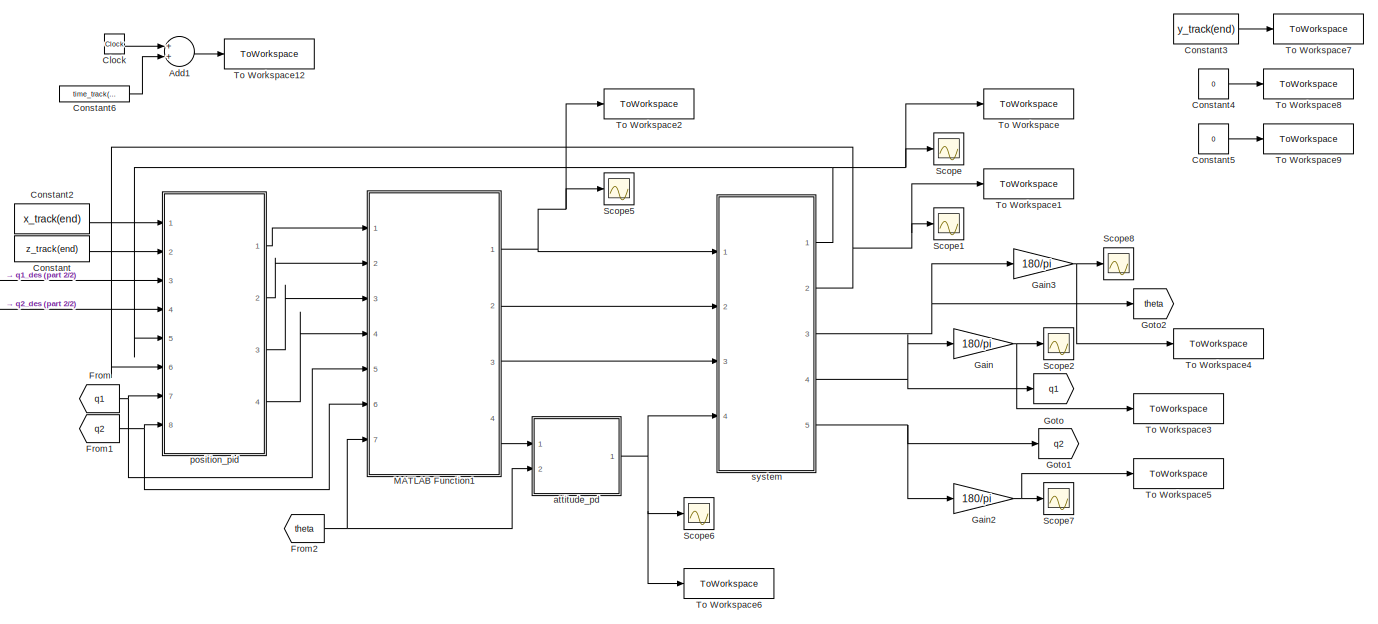
[diagram: root canvas - part 1/2, most of the canvas]
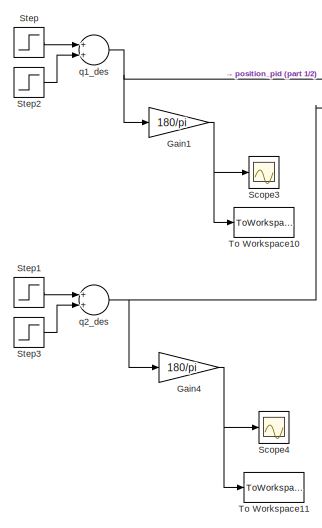
[diagram: root canvas - part 2/2, middle left region]
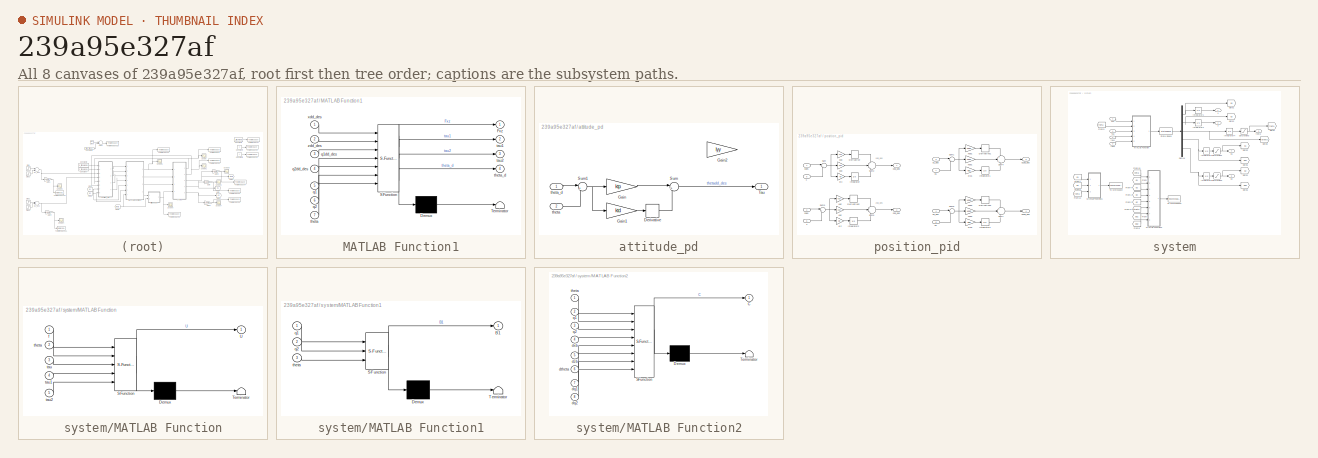
[diagram: thumbnail index - all 8 canvases of the model, root first then tree order]
MODEL slx_239a95e327af
KIND model
CONFIG AbsTol = auto
CONFIG EnableMultiTasking = off
CONFIG FixedStep = 0.0001
CONFIG MaxStep = auto
CONFIG MinStep = auto
CONFIG RelTol = 1e-3
CONFIG SampleTimeConstraint = Unconstrained
CONFIG Solver = ode4
CONFIG SolverName = ode4
CONFIG StartTime = 0.0
CONFIG StopTime = 50
BLOCK [Sum] Add1
  InputSameDT = off
  OutDataTypeStr = Inherit: Inherit via internal rule
  Ports = [2, 1]
  SaturateOnIntegerOverflow = off
BLOCK [Clock] Clock
BLOCK [Constant] Constant
  Value = z_track(end)
BLOCK [Constant] Constant2
  Value = x_track(end)
BLOCK [Constant] Constant3
  Value = y_track(end)
BLOCK [Constant] Constant4
  Value = 0
BLOCK [Constant] Constant5
  Value = 0
BLOCK [Constant] Constant6
  Value = time_track(end)
BLOCK [From] From
  GotoTag = q1
BLOCK [From] From1
  GotoTag = q2
BLOCK [From] From2
  GotoTag = theta
BLOCK [Gain] Gain
  Gain = 180/pi
  OutDataTypeStr = Inherit: Inherit via internal rule
  ParamDataTypeStr = Inherit: Inherit via internal rule
  SaturateOnIntegerOverflow = off
BLOCK [Gain] Gain1
  Gain = 180/pi
  OutDataTypeStr = Inherit: Inherit via internal rule
  ParamDataTypeStr = Inherit: Inherit via internal rule
  SaturateOnIntegerOverflow = off
BLOCK [Gain] Gain2
  Gain = 180/pi
  OutDataTypeStr = Inherit: Inherit via internal rule
  ParamDataTypeStr = Inherit: Inherit via internal rule
  SaturateOnIntegerOverflow = off
BLOCK [Gain] Gain3
  Gain = 180/pi
  OutDataTypeStr = Inherit: Inherit via internal rule
  ParamDataTypeStr = Inherit: Inherit via internal rule
  SaturateOnIntegerOverflow = off
BLOCK [Gain] Gain4
  Gain = 180/pi
  OutDataTypeStr = Inherit: Inherit via internal rule
  ParamDataTypeStr = Inherit: Inherit via internal rule
  SaturateOnIntegerOverflow = off
BLOCK [Goto] Goto
  GotoTag = q1
BLOCK [Goto] Goto1
  GotoTag = q2
BLOCK [Goto] Goto2
  GotoTag = theta
BLOCK [SubSystem] MATLAB Function1
  ErrorFcn = Stateflow.Translate.translate
  PermitHierarchicalResolution = ExplicitOnly
  Ports = [7, 4]
  RequestExecContextInheritance = off
  SFBlockType = MATLAB Function
  TreatAsAtomicUnit = on
BLOCK [Demux] MATLAB Function1/ Demux 
  Outputs = 1
  Ports = [1, 1]
BLOCK [S-Function] MATLAB Function1/ SFunction 
  EnableBusSupport = on
  FunctionName = sf_sfun
  Parameters = L1,L2,g,hL1,hL2,mL1,mL2,ms
  PortCounts = [7 5]
  Ports = [7, 5]
  SFcnIsStateOwnerBlock = off
  SFunctionDeploymentMode = off
  Tag = Stateflow S-Function xz2dof_1step 5
BLOCK [Terminator] MATLAB Function1/ Terminator 
BLOCK [Outport] MATLAB Function1/Fxz
  IconDisplay = Port number
BLOCK [Inport] MATLAB Function1/q1
  IconDisplay = Port number
  Port = 5
BLOCK [Inport] MATLAB Function1/q1dd_des
  IconDisplay = Port number
  Port = 3
BLOCK [Inport] MATLAB Function1/q2
  IconDisplay = Port number
  Port = 6
BLOCK [Inport] MATLAB Function1/q2dd_des
  IconDisplay = Port number
  Port = 4
BLOCK [Outport] MATLAB Function1/tau1
  IconDisplay = Port number
  Port = 2
BLOCK [Outport] MATLAB Function1/tau2
  IconDisplay = Port number
  Port = 3
BLOCK [Inport] MATLAB Function1/theta
  IconDisplay = Port number
  Port = 7
BLOCK [Outport] MATLAB Function1/theta_d
  IconDisplay = Port number
  Port = 4
BLOCK [Inport] MATLAB Function1/xdd_des
  IconDisplay = Port number
BLOCK [Inport] MATLAB Function1/zdd_des
  IconDisplay = Port number
  Port = 2
BLOCK [Scope] Scope
  Floating = off
  NumInputPorts = 1
  Ports = [1]
  ScopeSpecificationString = Simulink.scopes.TimeScopeBlockCfg('CurrentConfiguration', extmgr.ConfigurationSet(extmgr.Configuration('Core','General UI',true,'FigureColor',[1 1 1]),extmgr.Configuration('Core','Source UI',true),extmgr.Configuration('Sources','WiredSimulink',true),extmgr.Configuration('Visuals','Time Domain',true,'SerializedDisplays',{struct('MinYLimReal','3.98654','MaxYLimReal','4.04611','YLabelReal','','MinYLi...<+1565ch>
BLOCK [Scope] Scope1
  Floating = off
  NumInputPorts = 1
  Ports = [1]
  ScopeSpecificationString = Simulink.scopes.TimeScopeBlockCfg('CurrentConfiguration', extmgr.ConfigurationSet(extmgr.Configuration('Core','General UI',true,'FigureColor',[1 1 1]),extmgr.Configuration('Core','Source UI',true),extmgr.Configuration('Sources','WiredSimulink',true,'DataLoggingVariableName','ScopeData1'),extmgr.Configuration('Visuals','Time Domain',true,'SerializedDisplays',{struct('MinYLimReal','3.99837','MaxYLim...<+1558ch>
BLOCK [Scope] Scope2
  Floating = off
  NumInputPorts = 1
  Ports = [1]
  ScopeSpecificationString = Simulink.scopes.TimeScopeBlockCfg('CurrentConfiguration', extmgr.ConfigurationSet(extmgr.Configuration('Core','General UI',true,'FigureColor',[1 1 1]),extmgr.Configuration('Core','Source UI',true),extmgr.Configuration('Sources','WiredSimulink',true,'DataLoggingVariableName','ScopeData2'),extmgr.Configuration('Visuals','Time Domain',true,'SerializedDisplays',{struct('MinYLimReal','28.75412','MaxYLi...<+1550ch>
BLOCK [Scope] Scope3
  Floating = off
  NumInputPorts = 1
  Ports = [1]
  ScopeSpecificationString = Simulink.scopes.TimeScopeBlockCfg('CurrentConfiguration', extmgr.ConfigurationSet(extmgr.Configuration('Core','General UI',true,'FigureColor',[1 1 1]),extmgr.Configuration('Core','Source UI',true),extmgr.Configuration('Sources','WiredSimulink',true,'DataLoggingVariableName','ScopeData1'),extmgr.Configuration('Visuals','Time Domain',true,'SerializedDisplays',{struct('MinYLimReal','39.375','MaxYLimR...<+1566ch>
BLOCK [Scope] Scope4
  Floating = off
  NumInputPorts = 1
  Ports = [1]
  ScopeSpecificationString = Simulink.scopes.TimeScopeBlockCfg('CurrentConfiguration', extmgr.ConfigurationSet(extmgr.Configuration('Core','General UI',true,'FigureColor',[1 1 1]),extmgr.Configuration('Core','Source UI',true),extmgr.Configuration('Sources','WiredSimulink',true,'DataLoggingVariableName','ScopeData1'),extmgr.Configuration('Visuals','Time Domain',true,'SerializedDisplays',{struct('MinYLimReal','-5.625','MaxYLimR...<+1569ch>
BLOCK [Scope] Scope5
  Floating = off
  NumInputPorts = 1
  Ports = [1]
  ScopeSpecificationString = Simulink.scopes.TimeScopeBlockCfg('CurrentConfiguration', extmgr.ConfigurationSet(extmgr.Configuration('Core','General UI',true,'FigureColor',[1 1 1]),extmgr.Configuration('Core','Source UI',true),extmgr.Configuration('Sources','WiredSimulink',true,'DataLoggingVariableName','ScopeData3'),extmgr.Configuration('Visuals','Time Domain',true,'SerializedDisplays',{struct('MinYLimReal','13.1625','MaxYLim...<+1564ch>
BLOCK [Scope] Scope6
  Floating = off
  NumInputPorts = 1
  Ports = [1]
  ScopeSpecificationString = Simulink.scopes.TimeScopeBlockCfg('CurrentConfiguration', extmgr.ConfigurationSet(extmgr.Configuration('Core','General UI',true,'FigureColor',[1 1 1]),extmgr.Configuration('Core','Source UI',true),extmgr.Configuration('Sources','WiredSimulink',true,'DataLoggingVariableName','ScopeData4'),extmgr.Configuration('Visuals','Time Domain',true,'SerializedDisplays',{struct('MinYLimReal','-163579.35739','M...<+1610ch>
BLOCK [Scope] Scope7
  Floating = off
  NumInputPorts = 1
  Ports = [1]
  ScopeSpecificationString = Simulink.scopes.TimeScopeBlockCfg('CurrentConfiguration', extmgr.ConfigurationSet(extmgr.Configuration('Core','General UI',true,'FigureColor',[1 1 1]),extmgr.Configuration('Core','Source UI',true),extmgr.Configuration('Sources','WiredSimulink',true,'DataLoggingVariableName','ScopeData1'),extmgr.Configuration('Visuals','Time Domain',true,'SerializedDisplays',{struct('MinYLimReal','-8.70216','MaxYLi...<+1544ch>
BLOCK [Scope] Scope8
  Floating = off
  NumInputPorts = 1
  Ports = [1]
  ScopeSpecificationString = Simulink.scopes.TimeScopeBlockCfg('CurrentConfiguration', extmgr.ConfigurationSet(extmgr.Configuration('Core','General UI',true,'FigureColor',[1 1 1]),extmgr.Configuration('Core','Source UI',true),extmgr.Configuration('Sources','WiredSimulink',true,'DataLoggingVariableName','ScopeData1'),extmgr.Configuration('Visuals','Time Domain',true,'SerializedDisplays',{struct('MinYLimReal','-27.11822','MaxYL...<+1551ch>
BLOCK [Step] Step
  After = pi/4
  Before = pi/2
  SampleTime = 0
  Time = 2
BLOCK [Step] Step1
  After = pi/4
  SampleTime = 0
  Time = 2
BLOCK [Step] Step2
  After = pi/4
  SampleTime = 0
  Time = 20
BLOCK [Step] Step3
  After = -pi/4
  SampleTime = 0
  Time = 20
BLOCK [ToWorkspace] To Workspace
  FixptAsFi = on
  MaxDataPoints = inf
  Ports = [1]
  SampleTime = -1
  VariableName = x_grasp
BLOCK [ToWorkspace] To Workspace1
  FixptAsFi = on
  MaxDataPoints = inf
  Ports = [1]
  SampleTime = -1
  VariableName = z_grasp
BLOCK [ToWorkspace] To Workspace10
  FixptAsFi = on
  MaxDataPoints = inf
  Ports = [1]
  SampleTime = -1
  VariableName = q1_input
BLOCK [ToWorkspace] To Workspace11
  FixptAsFi = on
  MaxDataPoints = inf
  Ports = [1]
  SampleTime = -1
  VariableName = q2_input
BLOCK [ToWorkspace] To Workspace12
  MaxDataPoints = inf
  Ports = [1]
  SampleTime = -1
  VariableName = time_grasp
BLOCK [ToWorkspace] To Workspace2
  FixptAsFi = on
  MaxDataPoints = inf
  Ports = [1]
  SampleTime = -1
  VariableName = Fxz
BLOCK [ToWorkspace] To Workspace3
  FixptAsFi = on
  MaxDataPoints = inf
  Ports = [1]
  SampleTime = -1
  VariableName = q1_grasp
BLOCK [ToWorkspace] To Workspace4
  FixptAsFi = on
  MaxDataPoints = inf
  Ports = [1]
  SampleTime = -1
  VariableName = theta_grasp
BLOCK [ToWorkspace] To Workspace5
  FixptAsFi = on
  MaxDataPoints = inf
  Ports = [1]
  SampleTime = -1
  VariableName = q2_grasp
BLOCK [ToWorkspace] To Workspace6
  FixptAsFi = on
  MaxDataPoints = inf
  Ports = [1]
  SampleTime = -1
  VariableName = Tau
BLOCK [ToWorkspace] To Workspace7
  FixptAsFi = on
  MaxDataPoints = inf
  Ports = [1]
  SampleTime = -1
  VariableName = y_grasp
BLOCK [ToWorkspace] To Workspace8
  FixptAsFi = on
  MaxDataPoints = inf
  Ports = [1]
  SampleTime = -1
  VariableName = psi_grasp
BLOCK [ToWorkspace] To Workspace9
  FixptAsFi = on
  MaxDataPoints = inf
  Ports = [1]
  SampleTime = -1
  VariableName = fai_grasp
BLOCK [SubSystem] attitude_pd
  Ports = [2, 1]
  RequestExecContextInheritance = off
BLOCK [Derivative] attitude_pd/Derivative
BLOCK [Gain] attitude_pd/Gain
  Gain = ktp
  OutDataTypeStr = Inherit: Inherit via internal rule
  ParamDataTypeStr = Inherit: Inherit via internal rule
  SaturateOnIntegerOverflow = off
BLOCK [Gain] attitude_pd/Gain1
  Gain = ktd
  OutDataTypeStr = Inherit: Inherit via internal rule
  ParamDataTypeStr = Inherit: Inherit via internal rule
  SaturateOnIntegerOverflow = off
BLOCK [Gain] attitude_pd/Gain2
  Gain = Iyy
  OutDataTypeStr = Inherit: Inherit via internal rule
  ParamDataTypeStr = Inherit: Inherit via internal rule
  SaturateOnIntegerOverflow = off
BLOCK [Sum] attitude_pd/Sum
  IconShape = round
  InputSameDT = off
  Inputs = |++
  OutDataTypeStr = Inherit: Inherit via internal rule
  Ports = [2, 1]
  SaturateOnIntegerOverflow = off
BLOCK [Sum] attitude_pd/Sum1
  IconShape = round
  InputSameDT = off
  Inputs = |+-
  OutDataTypeStr = Inherit: Inherit via internal rule
  Ports = [2, 1]
  SaturateOnIntegerOverflow = off
BLOCK [Outport] attitude_pd/Tau
  IconDisplay = Port number
BLOCK [Inport] attitude_pd/theta
  IconDisplay = Port number
  Port = 2
BLOCK [Inport] attitude_pd/theta_d
  IconDisplay = Port number
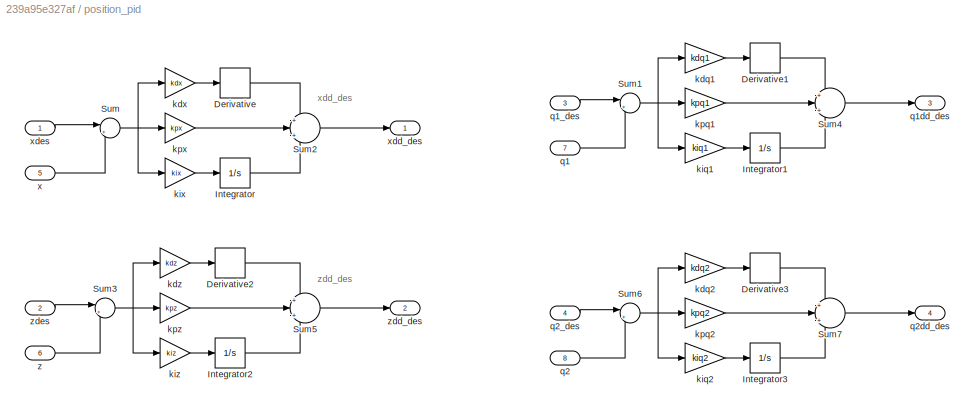
BLOCK [SubSystem] position_pid
  Ports = [8, 4]
  RequestExecContextInheritance = off
BLOCK [Derivative] position_pid/Derivative
BLOCK [Derivative] position_pid/Derivative1
BLOCK [Derivative] position_pid/Derivative2
BLOCK [Derivative] position_pid/Derivative3
BLOCK [Integrator] position_pid/Integrator
  Ports = [1, 1]
BLOCK [Integrator] position_pid/Integrator1
  Ports = [1, 1]
BLOCK [Integrator] position_pid/Integrator2
  Ports = [1, 1]
BLOCK [Integrator] position_pid/Integrator3
  Ports = [1, 1]
BLOCK [Sum] position_pid/Sum
  IconShape = round
  InputSameDT = off
  Inputs = |+-
  OutDataTypeStr = Inherit: Inherit via internal rule
  Ports = [2, 1]
  SaturateOnIntegerOverflow = off
BLOCK [Sum] position_pid/Sum1
  IconShape = round
  InputSameDT = off
  Inputs = |+-
  OutDataTypeStr = Inherit: Inherit via internal rule
  Ports = [2, 1]
  SaturateOnIntegerOverflow = off
BLOCK [Sum] position_pid/Sum2
  IconShape = round
  InputSameDT = off
  Inputs = +|+|+
  OutDataTypeStr = Inherit: Inherit via internal rule
  Ports = [3, 1]
  SaturateOnIntegerOverflow = off
BLOCK [Sum] position_pid/Sum3
  IconShape = round
  InputSameDT = off
  Inputs = |+-
  OutDataTypeStr = Inherit: Inherit via internal rule
  Ports = [2, 1]
  SaturateOnIntegerOverflow = off
BLOCK [Sum] position_pid/Sum4
  IconShape = round
  InputSameDT = off
  Inputs = +|+|+
  OutDataTypeStr = Inherit: Inherit via internal rule
  Ports = [3, 1]
  SaturateOnIntegerOverflow = off
BLOCK [Sum] position_pid/Sum5
  IconShape = round
  InputSameDT = off
  Inputs = +|+|+
  OutDataTypeStr = Inherit: Inherit via internal rule
  Ports = [3, 1]
  SaturateOnIntegerOverflow = off
BLOCK [Sum] position_pid/Sum6
  IconShape = round
  InputSameDT = off
  Inputs = |+-
  OutDataTypeStr = Inherit: Inherit via internal rule
  Ports = [2, 1]
  SaturateOnIntegerOverflow = off
BLOCK [Sum] position_pid/Sum7
  IconShape = round
  InputSameDT = off
  Inputs = +|+|+
  OutDataTypeStr = Inherit: Inherit via internal rule
  Ports = [3, 1]
  SaturateOnIntegerOverflow = off
BLOCK [Gain] position_pid/kdq1
  Gain = kdq1
  OutDataTypeStr = Inherit: Inherit via internal rule
  ParamDataTypeStr = Inherit: Inherit via internal rule
  SaturateOnIntegerOverflow = off
BLOCK [Gain] position_pid/kdq2
  Gain = kdq2
  OutDataTypeStr = Inherit: Inherit via internal rule
  ParamDataTypeStr = Inherit: Inherit via internal rule
  SaturateOnIntegerOverflow = off
BLOCK [Gain] position_pid/kdx
  Gain = kdx
  OutDataTypeStr = Inherit: Inherit via internal rule
  ParamDataTypeStr = Inherit: Inherit via internal rule
  SaturateOnIntegerOverflow = off
BLOCK [Gain] position_pid/kdz
  Gain = kdz
  OutDataTypeStr = Inherit: Inherit via internal rule
  ParamDataTypeStr = Inherit: Inherit via internal rule
  SaturateOnIntegerOverflow = off
BLOCK [Gain] position_pid/kiq1
  Gain = kiq1
  OutDataTypeStr = Inherit: Inherit via internal rule
  ParamDataTypeStr = Inherit: Inherit via internal rule
  SaturateOnIntegerOverflow = off
BLOCK [Gain] position_pid/kiq2
  Gain = kiq2
  OutDataTypeStr = Inherit: Inherit via internal rule
  ParamDataTypeStr = Inherit: Inherit via internal rule
  SaturateOnIntegerOverflow = off
BLOCK [Gain] position_pid/kix
  Gain = kix
  OutDataTypeStr = Inherit: Inherit via internal rule
  ParamDataTypeStr = Inherit: Inherit via internal rule
  SaturateOnIntegerOverflow = off
BLOCK [Gain] position_pid/kiz
  Gain = kiz
  OutDataTypeStr = Inherit: Inherit via internal rule
  ParamDataTypeStr = Inherit: Inherit via internal rule
  SaturateOnIntegerOverflow = off
BLOCK [Gain] position_pid/kpq1
  Gain = kpq1
  OutDataTypeStr = Inherit: Inherit via internal rule
  ParamDataTypeStr = Inherit: Inherit via internal rule
  SaturateOnIntegerOverflow = off
BLOCK [Gain] position_pid/kpq2
  Gain = kpq2
  OutDataTypeStr = Inherit: Inherit via internal rule
  ParamDataTypeStr = Inherit: Inherit via internal rule
  SaturateOnIntegerOverflow = off
BLOCK [Gain] position_pid/kpx
  Gain = kpx
  OutDataTypeStr = Inherit: Inherit via internal rule
  ParamDataTypeStr = Inherit: Inherit via internal rule
  SaturateOnIntegerOverflow = off
BLOCK [Gain] position_pid/kpz
  Gain = kpz
  OutDataTypeStr = Inherit: Inherit via internal rule
  ParamDataTypeStr = Inherit: Inherit via internal rule
  SaturateOnIntegerOverflow = off
BLOCK [Inport] position_pid/q1
  IconDisplay = Port number
  Port = 7
BLOCK [Inport] position_pid/q1_des
  IconDisplay = Port number
  Port = 3
BLOCK [Outport] position_pid/q1dd_des
  IconDisplay = Port number
  Port = 3
BLOCK [Inport] position_pid/q2
  IconDisplay = Port number
  Port = 8
BLOCK [Inport] position_pid/q2_des
  IconDisplay = Port number
  Port = 4
BLOCK [Outport] position_pid/q2dd_des
  IconDisplay = Port number
  Port = 4
BLOCK [Inport] position_pid/x
  IconDisplay = Port number
  Port = 5
BLOCK [Outport] position_pid/xdd_des
  IconDisplay = Port number
BLOCK [Inport] position_pid/xdes
  IconDisplay = Port number
BLOCK [Inport] position_pid/z
  IconDisplay = Port number
  Port = 6
BLOCK [Outport] position_pid/zdd_des
  IconDisplay = Port number
  Port = 2
BLOCK [Inport] position_pid/zdes
  IconDisplay = Port number
  Port = 2
BLOCK [Sum] q1_des
  InputSameDT = off
  OutDataTypeStr = Inherit: Inherit via internal rule
  Ports = [2, 1]
  SaturateOnIntegerOverflow = off
BLOCK [Sum] q2_des
  InputSameDT = off
  OutDataTypeStr = Inherit: Inherit via internal rule
  Ports = [2, 1]
  SaturateOnIntegerOverflow = off
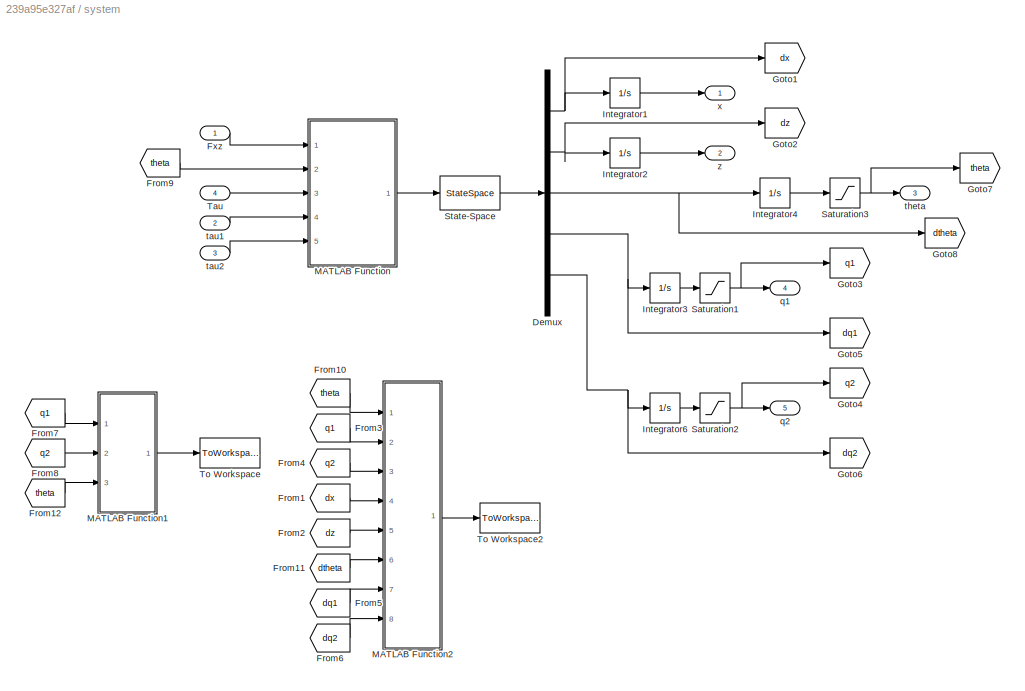
BLOCK [SubSystem] system
  Ports = [4, 5]
  RequestExecContextInheritance = off
BLOCK [Demux] system/Demux
  DisplayOption = bar
  Outputs = 5
  Ports = [1, 5]
BLOCK [From] system/From1
  GotoTag = dx
BLOCK [From] system/From10
  GotoTag = theta
BLOCK [From] system/From11
  GotoTag = dtheta
BLOCK [From] system/From12
  GotoTag = theta
BLOCK [From] system/From2
  GotoTag = dz
BLOCK [From] system/From3
  GotoTag = q1
BLOCK [From] system/From4
  GotoTag = q2
BLOCK [From] system/From5
  GotoTag = dq1
BLOCK [From] system/From6
  GotoTag = dq2
BLOCK [From] system/From7
  GotoTag = q1
BLOCK [From] system/From8
  GotoTag = q2
BLOCK [From] system/From9
  GotoTag = theta
BLOCK [Inport] system/Fxz
  IconDisplay = Port number
BLOCK [Goto] system/Goto1
  GotoTag = dx
BLOCK [Goto] system/Goto2
  GotoTag = dz
BLOCK [Goto] system/Goto3
  GotoTag = q1
BLOCK [Goto] system/Goto4
  GotoTag = q2
BLOCK [Goto] system/Goto5
  GotoTag = dq1
BLOCK [Goto] system/Goto6
  GotoTag = dq2
BLOCK [Goto] system/Goto7
  GotoTag = theta
BLOCK [Goto] system/Goto8
  GotoTag = dtheta
BLOCK [Integrator] system/Integrator1
  InitialCondition = x_track(end)
  Ports = [1, 1]
BLOCK [Integrator] system/Integrator2
  InitialCondition = z_track(end)
  Ports = [1, 1]
BLOCK [Integrator] system/Integrator3
  InitialCondition = pi/2
  Ports = [1, 1]
BLOCK [Integrator] system/Integrator4
  Ports = [1, 1]
BLOCK [Integrator] system/Integrator6
  Ports = [1, 1]
BLOCK [SubSystem] system/MATLAB Function
  ErrorFcn = Stateflow.Translate.translate
  PermitHierarchicalResolution = ExplicitOnly
  Ports = [5, 1]
  RequestExecContextInheritance = off
  SFBlockType = MATLAB Function
  TreatAsAtomicUnit = on
BLOCK [Demux] system/MATLAB Function/ Demux 
  DisplayOption = bar
  Outputs = 1
  Ports = [1, 1]
BLOCK [S-Function] system/MATLAB Function/ SFunction 
  EnableBusSupport = on
  FunctionName = sf_sfun
  Parameters = L1,L2,g,mL1,mL2,mb,q1,q2
  PortCounts = [5 2]
  Ports = [5, 2]
  SFcnIsStateOwnerBlock = off
  SFunctionDeploymentMode = off
  Tag = Stateflow S-Function xz2dof_1step 2
BLOCK [Terminator] system/MATLAB Function/ Terminator 
BLOCK [Outport] system/MATLAB Function/U
  IconDisplay = Port number
BLOCK [Inport] system/MATLAB Function/f
  IconDisplay = Port number
BLOCK [Inport] system/MATLAB Function/tau
  IconDisplay = Port number
  Port = 3
BLOCK [Inport] system/MATLAB Function/tau1
  IconDisplay = Port number
  Port = 4
BLOCK [Inport] system/MATLAB Function/tau2
  IconDisplay = Port number
  Port = 5
BLOCK [Inport] system/MATLAB Function/theta
  IconDisplay = Port number
  Port = 2
BLOCK [SubSystem] system/MATLAB Function1
  ErrorFcn = Stateflow.Translate.translate
  PermitHierarchicalResolution = ExplicitOnly
  Ports = [3, 1]
  RequestExecContextInheritance = off
  SFBlockType = MATLAB Function
  TreatAsAtomicUnit = on
BLOCK [Demux] system/MATLAB Function1/ Demux 
  DisplayOption = bar
  Outputs = 1
  Ports = [1, 1]
BLOCK [S-Function] system/MATLAB Function1/ SFunction 
  EnableBusSupport = on
  FunctionName = sf_sfun
  Parameters = Iyy,L1,L2,hL1,hL2,mL1,mL2,mb
  PortCounts = [3 2]
  Ports = [3, 2]
  SFcnIsStateOwnerBlock = off
  SFunctionDeploymentMode = off
  Tag = Stateflow S-Function xz2dof_1step 1
BLOCK [Terminator] system/MATLAB Function1/ Terminator 
BLOCK [Outport] system/MATLAB Function1/B1
  IconDisplay = Port number
BLOCK [Inport] system/MATLAB Function1/q1
  IconDisplay = Port number
BLOCK [Inport] system/MATLAB Function1/q2
  IconDisplay = Port number
  Port = 2
BLOCK [Inport] system/MATLAB Function1/theta
  IconDisplay = Port number
  Port = 3
BLOCK [SubSystem] system/MATLAB Function2
  ErrorFcn = Stateflow.Translate.translate
  PermitHierarchicalResolution = ExplicitOnly
  Ports = [8, 1]
  RequestExecContextInheritance = off
  SFBlockType = MATLAB Function
  TreatAsAtomicUnit = on
BLOCK [Demux] system/MATLAB Function2/ Demux 
  DisplayOption = bar
  Outputs = 1
  Ports = [1, 1]
BLOCK [S-Function] system/MATLAB Function2/ SFunction 
  EnableBusSupport = on
  FunctionName = sf_sfun
  Parameters = L1,L2,mL1,mL2
  PortCounts = [8 2]
  Ports = [8, 2]
  SFcnIsStateOwnerBlock = off
  SFunctionDeploymentMode = off
  Tag = Stateflow S-Function xz2dof_1step 3
BLOCK [Terminator] system/MATLAB Function2/ Terminator 
BLOCK [Outport] system/MATLAB Function2/C
  IconDisplay = Port number
BLOCK [Inport] system/MATLAB Function2/dq1
  IconDisplay = Port number
  Port = 7
BLOCK [Inport] system/MATLAB Function2/dq2
  IconDisplay = Port number
  Port = 8
BLOCK [Inport] system/MATLAB Function2/dtheta
  IconDisplay = Port number
  Port = 6
BLOCK [Inport] system/MATLAB Function2/dxb
  IconDisplay = Port number
  Port = 4
BLOCK [Inport] system/MATLAB Function2/dzb
  IconDisplay = Port number
  Port = 5
BLOCK [Inport] system/MATLAB Function2/q1
  IconDisplay = Port number
  Port = 2
BLOCK [Inport] system/MATLAB Function2/q2
  IconDisplay = Port number
  Port = 3
BLOCK [Inport] system/MATLAB Function2/theta
  IconDisplay = Port number
BLOCK [Saturate] system/Saturation1
  InputPortMap = u0
  LowerLimit = -pi
  Ports = [1, 1]
  UpperLimit = pi
BLOCK [Saturate] system/Saturation2
  InputPortMap = u0
  LowerLimit = -pi
  Ports = [1, 1]
  UpperLimit = pi
BLOCK [Saturate] system/Saturation3
  InputPortMap = u0
  LowerLimit = -pi/2
  Ports = [1, 1]
  UpperLimit = pi/2
BLOCK [StateSpace] system/State-Space
  A = -B1*C1
  B = B1
  C = [1 0 0 0 0;0 1 0 0 0;0 0 1 0 0;0 0 0 1 0;0 0 0 0 1]
  D = [0 0 0 0 0;0 0 0 0 0;0 0 0 0 0;0 0 0 0 0;0 0 0 0 0]
  InitialCondition = 0
  Ports = [1, 1]
BLOCK [Inport] system/Tau
  IconDisplay = Port number
  Port = 4
BLOCK [ToWorkspace] system/To Workspace
  FixptAsFi = on
  MaxDataPoints = inf
  Ports = [1]
  SampleTime = -1
  SaveFormat = Timeseries
  VariableName = B1
BLOCK [ToWorkspace] system/To Workspace2
  FixptAsFi = on
  MaxDataPoints = inf
  Ports = [1]
  SampleTime = -1
  SaveFormat = Timeseries
  VariableName = C1
BLOCK [Outport] system/q1
  IconDisplay = Port number
  Port = 4
BLOCK [Outport] system/q2
  IconDisplay = Port number
  Port = 5
BLOCK [Inport] system/tau1
  IconDisplay = Port number
  Port = 2
BLOCK [Inport] system/tau2
  IconDisplay = Port number
  Port = 3
BLOCK [Outport] system/theta
  IconDisplay = Port number
  Port = 3
BLOCK [Outport] system/x
  IconDisplay = Port number
BLOCK [Outport] system/z
  IconDisplay = Port number
  Port = 2
ANNOTATION position_pid: xdd_des
ANNOTATION position_pid: zdd_des
LINE Add1:1 -> To Workspace12:1
LINE Clock:1 -> Add1:1
LINE Constant2:1 -> position_pid:1
LINE Constant3:1 -> To Workspace7:1
LINE Constant4:1 -> To Workspace8:1
LINE Constant5:1 -> To Workspace9:1
LINE Constant6:1 -> Add1:2
LINE Constant:1 -> position_pid:2
NET From1:1 -> MATLAB Function1:6, position_pid:8
NET From2:1 -> MATLAB Function1:7, attitude_pd:2
NET From:1 -> MATLAB Function1:5, position_pid:7
NET Gain1:1 -> Scope3:1, To Workspace10:1
NET Gain2:1 -> Scope7:1, To Workspace5:1
NET Gain3:1 -> Scope8:1, To Workspace4:1
NET Gain4:1 -> Scope4:1, To Workspace11:1
NET Gain:1 -> Scope2:1, To Workspace3:1
NET MATLAB Function1:1 -> Scope5:1, To Workspace2:1, system:1
LINE MATLAB Function1:2 -> system:2
LINE MATLAB Function1:3 -> system:3
LINE MATLAB Function1:4 -> attitude_pd:1
LINE Step1:1 -> q2_des:1
LINE Step2:1 -> q1_des:2
LINE Step3:1 -> q2_des:2
LINE Step:1 -> q1_des:1
LINE attitude_pd/Derivative:1 -> attitude_pd/Sum:2
LINE attitude_pd/Gain1:1 -> attitude_pd/Derivative:1
LINE attitude_pd/Gain:1 -> attitude_pd/Sum:1
NET attitude_pd/Sum1:1 -> attitude_pd/Gain1:1, attitude_pd/Gain:1
LINE attitude_pd/Sum:1 -> attitude_pd/Tau:1
LINE attitude_pd/theta:1 -> attitude_pd/Sum1:2
LINE attitude_pd/theta_d:1 -> attitude_pd/Sum1:1
NET attitude_pd:1 -> Scope6:1, To Workspace6:1, system:4
LINE position_pid/Derivative1:1 -> position_pid/Sum4:1
LINE position_pid/Derivative2:1 -> position_pid/Sum5:1
LINE position_pid/Derivative3:1 -> position_pid/Sum7:1
LINE position_pid/Derivative:1 -> position_pid/Sum2:1
LINE position_pid/Integrator1:1 -> position_pid/Sum4:3
LINE position_pid/Integrator2:1 -> position_pid/Sum5:3
LINE position_pid/Integrator3:1 -> position_pid/Sum7:3
LINE position_pid/Integrator:1 -> position_pid/Sum2:3
NET position_pid/Sum1:1 -> position_pid/kdq1:1, position_pid/kiq1:1, position_pid/kpq1:1
LINE position_pid/Sum2:1 -> position_pid/xdd_des:1
NET position_pid/Sum3:1 -> position_pid/kdz:1, position_pid/kiz:1, position_pid/kpz:1
LINE position_pid/Sum4:1 -> position_pid/q1dd_des:1
LINE position_pid/Sum5:1 -> position_pid/zdd_des:1
NET position_pid/Sum6:1 -> position_pid/kdq2:1, position_pid/kiq2:1, position_pid/kpq2:1
LINE position_pid/Sum7:1 -> position_pid/q2dd_des:1
NET position_pid/Sum:1 -> position_pid/kdx:1, position_pid/kix:1, position_pid/kpx:1
LINE position_pid/kdq1:1 -> position_pid/Derivative1:1
LINE position_pid/kdq2:1 -> position_pid/Derivative3:1
LINE position_pid/kdx:1 -> position_pid/Derivative:1
LINE position_pid/kdz:1 -> position_pid/Derivative2:1
LINE position_pid/kiq1:1 -> position_pid/Integrator1:1
LINE position_pid/kiq2:1 -> position_pid/Integrator3:1
LINE position_pid/kix:1 -> position_pid/Integrator:1
LINE position_pid/kiz:1 -> position_pid/Integrator2:1
LINE position_pid/kpq1:1 -> position_pid/Sum4:2
LINE position_pid/kpq2:1 -> position_pid/Sum7:2
LINE position_pid/kpx:1 -> position_pid/Sum2:2
LINE position_pid/kpz:1 -> position_pid/Sum5:2
LINE position_pid/q1:1 -> position_pid/Sum1:2
LINE position_pid/q1_des:1 -> position_pid/Sum1:1
LINE position_pid/q2:1 -> position_pid/Sum6:2
LINE position_pid/q2_des:1 -> position_pid/Sum6:1
LINE position_pid/x:1 -> position_pid/Sum:2
LINE position_pid/xdes:1 -> position_pid/Sum:1
LINE position_pid/z:1 -> position_pid/Sum3:2
LINE position_pid/zdes:1 -> position_pid/Sum3:1
LINE position_pid:1 -> MATLAB Function1:1
LINE position_pid:2 -> MATLAB Function1:2
LINE position_pid:3 -> MATLAB Function1:3
LINE position_pid:4 -> MATLAB Function1:4
NET q1_des:1 -> Gain1:1, position_pid:3
NET q2_des:1 -> Gain4:1, position_pid:4
NET system/Demux:1 -> system/Goto1:1, system/Integrator1:1
NET system/Demux:2 -> system/Goto2:1, system/Integrator2:1
NET system/Demux:3 -> system/Goto8:1, system/Integrator4:1
NET system/Demux:4 -> system/Goto5:1, system/Integrator3:1
NET system/Demux:5 -> system/Goto6:1, system/Integrator6:1
LINE system/From10:1 -> system/MATLAB Function2:1
LINE system/From11:1 -> system/MATLAB Function2:6
LINE system/From12:1 -> system/MATLAB Function1:3
LINE system/From1:1 -> system/MATLAB Function2:4
LINE system/From2:1 -> system/MATLAB Function2:5
LINE system/From3:1 -> system/MATLAB Function2:2
LINE system/From4:1 -> system/MATLAB Function2:3
LINE system/From5:1 -> system/MATLAB Function2:7
LINE system/From6:1 -> system/MATLAB Function2:8
LINE system/From7:1 -> system/MATLAB Function1:1
LINE system/From8:1 -> system/MATLAB Function1:2
LINE system/From9:1 -> system/MATLAB Function:2
LINE system/Fxz:1 -> system/MATLAB Function:1
LINE system/Integrator1:1 -> system/x:1
LINE system/Integrator2:1 -> system/z:1
LINE system/Integrator3:1 -> system/Saturation1:1
LINE system/Integrator4:1 -> system/Saturation3:1
LINE system/Integrator6:1 -> system/Saturation2:1
LINE system/MATLAB Function1:1 -> system/To Workspace:1
LINE system/MATLAB Function2:1 -> system/To Workspace2:1
LINE system/MATLAB Function:1 -> system/State-Space:1
NET system/Saturation1:1 -> system/Goto3:1, system/q1:1
NET system/Saturation2:1 -> system/Goto4:1, system/q2:1
NET system/Saturation3:1 -> system/Goto7:1, system/theta:1
LINE system/State-Space:1 -> system/Demux:1
LINE system/Tau:1 -> system/MATLAB Function:3
LINE system/tau1:1 -> system/MATLAB Function:4
LINE system/tau2:1 -> system/MATLAB Function:5
NET system:1 -> Scope:1, To Workspace:1, position_pid:5
NET system:2 -> Scope1:1, To Workspace1:1, position_pid:6
NET system:3 -> Gain3:1, Goto2:1
NET system:4 -> Gain:1, Goto:1
NET system:5 -> Gain2:1, Goto1:1
note: NET lines group one-source signal fan-out (src -> all destinations, sorted); 1:1 wires keep LINE
CHART system/MATLAB Function1 states=1 transitions=1
  STATE_LABEL 'eML_blk_kernel()'
  STATE_LABEL 'SCRIPT:\nfunction B1 = Bout(q1, q2, theta, mL1, mL2, mb, L1, L2, hL1, hL2, Iyy)\nB = zeros(5,5);\n\nB(1,1) = mL1 + mL2 + mb; B(1,2) = 0;\nB(1,3) = (mL1*L1/2 + mL2*L1)*sin(q1-theta) + (mL2*L2/2)*sin(q1+q2-theta);\nB(1,4) = -(mL1*L1/2 + mL2*L1)*sin(q1-theta) - (mL2*L2/2)*sin(q1+q2-theta);\nB(1,5) = -(mL2*L2/2)*sin(q1+q2-theta);\n\nB(2,1) = 0; B(2,2) = mL1 + mL2 + mb;\nB(2,3) = -(mL1*L1/2 + mL2*L1)*cos(q1-thet...<+991ch>'
CHART system/MATLAB Function states=1 transitions=1
  STATE_LABEL 'eML_blk_kernel()'
  STATE_LABEL 'SCRIPT:\nfunction U = Uout(f,theta,tau,tau1,tau2,q1,q2,g, mL1, mL2, mb, L1, L2)\nu = zeros(5,1);\nG = zeros(5,1);\nU = zeros(5,1);\n\n% f = f1+f2+f3+f4 是总升力\n% tau是俯仰力矩\n% tau1,tau2是关节力矩\nu(1,1) = f*sin(theta);\nu(2,1) = f*cos(theta);\nu(3,1) = tau;\nu(4,1) = tau1;\nu(5,1) = tau2;\n\n%% 计算G\nG(1,1) = 0;\nG(2,1) = (mL1 + mL2 + mb)*g;\nG(3,1) = - g*mL1*(L1/2*cos(q1-theta)) - g*mL2*(L1*cos(q1-theta)+L2/2*cos(q1+q2-the...<+148ch>'
CHART system/MATLAB Function2 states=1 transitions=1
  STATE_LABEL 'eML_blk_kernel()'
  STATE_LABEL 'SCRIPT:\nfunction C = Cout(theta, q1, q2, dxb, dzb, dtheta, dq1, dq2, mL1, mL2, L1, L2)\nC = zeros(5,5);\n\nC(1,1) = 0; C(1,2) = 0;\nC(1,3) =  dq1*(cos(q1 - theta)*((L1*mL1)/2 + L1*mL2) + (L2*mL2*cos(q1 + q2 - theta))/2) - dtheta*(cos(q1 - theta)*((L1*mL1)/2 + L1*mL2) + (L2*mL2*cos(q1 + q2 - theta))/2) + (L2*dq2*mL2*cos(q1 + q2 - theta))/2;\nC(1,4) = dtheta*(cos(q1 - theta)*((L1*mL1)/2 + L1*mL2) + (L2*m...<+3551ch>'
CHART MATLAB Function1 states=1 transitions=1
  STATE_LABEL 'eML_blk_kernel()'
  STATE_LABEL 'SCRIPT:\nfunction [Fxz,tau1,tau2,theta_d] = inv_dynamic(xdd_des, zdd_des, q1dd_des, q2dd_des, q1, q2, theta, ms, g, hL1, mL1, L1, mL2, L2, hL2)\nFxz = ms*sqrt((xdd_des)^2+(zdd_des+g)^2);\ntheta_d = atan(xdd_des/(zdd_des+g));\ntau1 = hL1*q1dd_des - mL1*g*L1/2*cos(q1-theta) - mL2*g*(L1*cos(q1-theta)+L2/2*cos(q1+q2-theta));\ntau2 = hL2*q2dd_des - mL2*g*L2/2*cos(q1+q2-theta);\nend\n'
